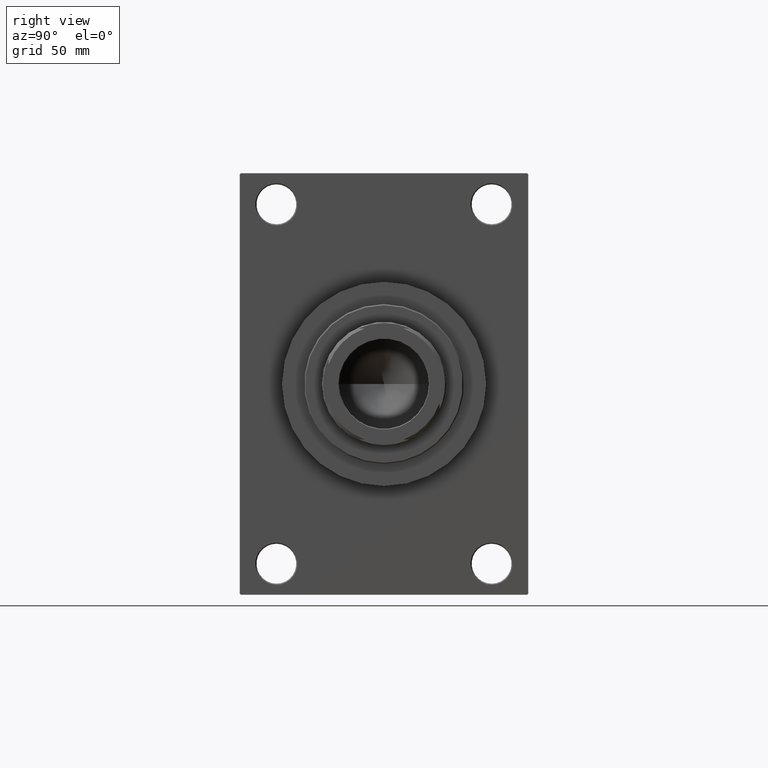
[diagram: clean part render]
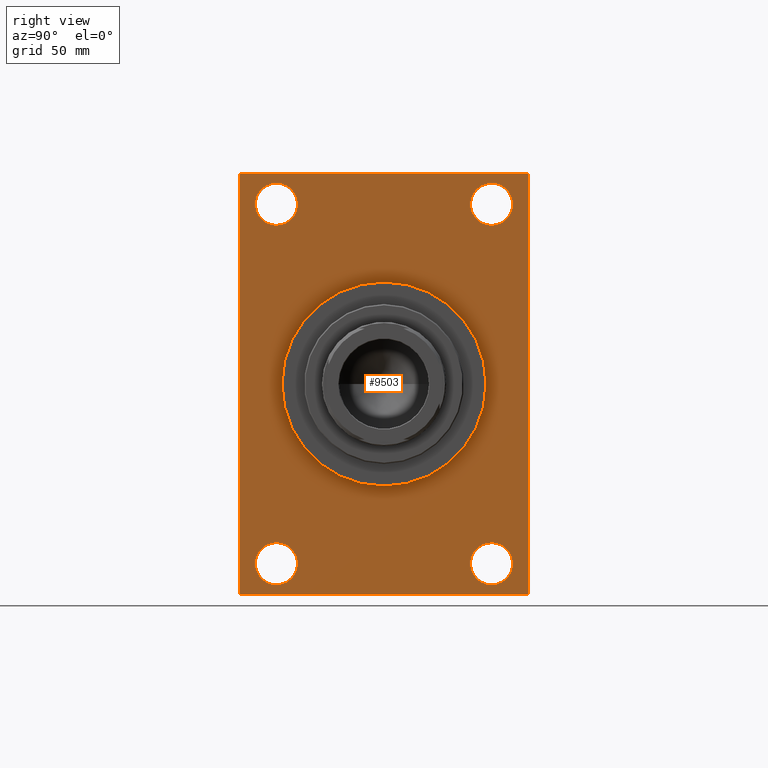
[diagram: same view with one face highlighted and labeled with its STEP entity id]
A machine part, right view. The second image highlights one B-rep face of the part: STEP entity #9503.
In plain terms, the highlighted planar face has unit normal (-1, 0, 0).
Its self-contained STEP definition (entity closure, byte-faithful):
#1101 = DIRECTION ( 'NONE',  ( -1.000000000000000000, 0.000000000000000000, -0.000000000000000000 ) ) ;
#1237 = CARTESIAN_POINT ( 'NONE',  ( 159.0000000000000000, -65.00000000000001421, -94.50000000000008527 ) ) ;
#1415 = EDGE_LOOP ( 'NONE', ( #4907, #4666, #29789, #25947, #44043, #23725, #31764, #9885 ) ) ;
#1436 = DIRECTION ( 'NONE',  ( -1.000000000000000000, 0.000000000000000000, -0.000000000000000000 ) ) ;
#1697 = LINE ( 'NONE', #20069, #4475 ) ;
#1803 = VERTEX_POINT ( 'NONE', #21171 ) ;
#2259 = CIRCLE ( 'NONE', #6932, 9.500000000000008882 ) ;
#2469 = ORIENTED_EDGE ( 'NONE', *, *, #18744, .T. ) ;
#4074 = CARTESIAN_POINT ( 'NONE',  ( 159.0000000000000000, 64.99999999999998579, -95.00000000000001421 ) ) ;
#4475 = VECTOR ( 'NONE', #8470, 1000.000000000000000 ) ;
#4664 = CIRCLE ( 'NONE', #33232, 9.500000000000008882 ) ;
#4666 = ORIENTED_EDGE ( 'NONE', *, *, #13728, .T. ) ;
#4907 = ORIENTED_EDGE ( 'NONE', *, *, #22412, .T. ) ;
#4955 = FACE_BOUND ( 'NONE', #46704, .T. ) ;
#5387 = DIRECTION ( 'NONE',  ( 1.000000000000000000, 0.000000000000000000, 0.000000000000000000 ) ) ;
#5436 = AXIS2_PLACEMENT_3D ( 'NONE', #21389, #17276, #43597 ) ;
#5768 = CARTESIAN_POINT ( 'NONE',  ( 159.0000000000000000, 48.50000000000000711, -90.50000000000002842 ) ) ;
#5809 = DIRECTION ( 'NONE',  ( 0.000000000000000000, 0.000000000000000000, 1.000000000000000000 ) ) ;
#6092 = VERTEX_POINT ( 'NONE', #18719 ) ;
#6487 = DIRECTION ( 'NONE',  ( -1.000000000000000000, 0.000000000000000000, -0.000000000000000000 ) ) ;
#6932 = AXIS2_PLACEMENT_3D ( 'NONE', #26514, #29663, #11052 ) ;
#7493 = VERTEX_POINT ( 'NONE', #8061 ) ;
#7687 = DIRECTION ( 'NONE',  ( -0.000000000000000000, 0.7071067811865574537, 0.7071067811865376918 ) ) ;
#8022 = VERTEX_POINT ( 'NONE', #41239 ) ;
#8061 = CARTESIAN_POINT ( 'NONE',  ( 159.0000000000000000, -48.49999999999999289, -71.50000000000001421 ) ) ;
#8470 = DIRECTION ( 'NONE',  ( 0.000000000000000000, 7.304098846218135653E-17, -1.000000000000000000 ) ) ;
#8588 = FACE_OUTER_BOUND ( 'NONE', #1415, .T. ) ;
#9503 = ADVANCED_FACE ( 'NONE', ( #22845, #26001, #45043, #19225, #4955, #8588 ), #33969, .F. ) ;
#9530 = CARTESIAN_POINT ( 'NONE',  ( 159.0000000000000000, 48.50000000000000711, 81.00000000000000000 ) ) ;
#9851 = EDGE_CURVE ( 'NONE', #33858, #17242, #14448, .T. ) ;
#9885 = ORIENTED_EDGE ( 'NONE', *, *, #43542, .T. ) ;
#9985 = LINE ( 'NONE', #24740, #13405 ) ;
#10129 = DIRECTION ( 'NONE',  ( 0.000000000000000000, 0.7071067811865474617, -0.7071067811865474617 ) ) ;
#10131 = EDGE_CURVE ( 'NONE', #8022, #40219, #1697, .T. ) ;
#10458 = CARTESIAN_POINT ( 'NONE',  ( 159.0000000000000000, -64.50000000000002842, 94.99999999999997158 ) ) ;
#11052 = DIRECTION ( 'NONE',  ( 0.000000000000000000, 0.000000000000000000, 1.000000000000000000 ) ) ;
#11102 = EDGE_CURVE ( 'NONE', #7493, #39065, #35347, .T. ) ;
#11124 = EDGE_LOOP ( 'NONE', ( #46546, #24216 ) ) ;
#12585 = LINE ( 'NONE', #12819, #35636 ) ;
#12617 = VECTOR ( 'NONE', #43074, 1000.000000000000114 ) ;
#12635 = CARTESIAN_POINT ( 'NONE',  ( 159.0000000000000000, 48.50000000000000711, 90.50000000000001421 ) ) ;
#12807 = DIRECTION ( 'NONE',  ( -1.000000000000000000, 0.000000000000000000, -0.000000000000000000 ) ) ;
#12819 = CARTESIAN_POINT ( 'NONE',  ( 159.0000000000000000, -65.00000000000001421, 94.49999999999997158 ) ) ;
#12914 = AXIS2_PLACEMENT_3D ( 'NONE', #29863, #1101, #44335 ) ;
#13398 = DIRECTION ( 'NONE',  ( 0.000000000000000000, 0.000000000000000000, -1.000000000000000000 ) ) ;
#13405 = VECTOR ( 'NONE', #24020, 1000.000000000000000 ) ;
#13669 = CIRCLE ( 'NONE', #19850, 9.500000000000008882 ) ;
#13728 = EDGE_CURVE ( 'NONE', #30883, #23838, #43214, .T. ) ;
#13881 = EDGE_CURVE ( 'NONE', #44274, #40219, #44626, .T. ) ;
#13913 = CIRCLE ( 'NONE', #5436, 46.00000000000000000 ) ;
#14064 = VERTEX_POINT ( 'NONE', #39070 ) ;
#14448 = CIRCLE ( 'NONE', #15996, 46.00000000000000000 ) ;
#14467 = AXIS2_PLACEMENT_3D ( 'NONE', #45889, #12807, #16436 ) ;
#14637 = VERTEX_POINT ( 'NONE', #38945 ) ;
#14944 = LINE ( 'NONE', #4074, #33822 ) ;
#15549 = ORIENTED_EDGE ( 'NONE', *, *, #36149, .F. ) ;
#15961 = DIRECTION ( 'NONE',  ( -1.000000000000000000, 0.000000000000000000, -0.000000000000000000 ) ) ;
#15996 = AXIS2_PLACEMENT_3D ( 'NONE', #31466, #5387, #27371 ) ;
#16436 = DIRECTION ( 'NONE',  ( 0.000000000000000000, 0.000000000000000000, 1.000000000000000000 ) ) ;
#17018 = EDGE_LOOP ( 'NONE', ( #2469, #18619 ) ) ;
#17242 = VERTEX_POINT ( 'NONE', #34185 ) ;
#17276 = DIRECTION ( 'NONE',  ( 1.000000000000000000, 0.000000000000000000, 0.000000000000000000 ) ) ;
#17437 = EDGE_CURVE ( 'NONE', #6092, #19377, #40076, .T. ) ;
#17675 = ORIENTED_EDGE ( 'NONE', *, *, #22892, .T. ) ;
#18619 = ORIENTED_EDGE ( 'NONE', *, *, #11102, .T. ) ;
#18719 = CARTESIAN_POINT ( 'NONE',  ( 159.0000000000000000, -48.50000000000000000, 71.50000000000000000 ) ) ;
#18744 = EDGE_CURVE ( 'NONE', #39065, #7493, #2259, .T. ) ;
#19225 = FACE_BOUND ( 'NONE', #35864, .T. ) ;
#19377 = VERTEX_POINT ( 'NONE', #31748 ) ;
#19457 = ORIENTED_EDGE ( 'NONE', *, *, #28857, .T. ) ;
#19592 = CARTESIAN_POINT ( 'NONE',  ( 159.0000000000000000, 48.50000000000000711, 81.00000000000000000 ) ) ;
#19850 = AXIS2_PLACEMENT_3D ( 'NONE', #9530, #24276, #39010 ) ;
#19905 = VERTEX_POINT ( 'NONE', #21406 ) ;
#20069 = CARTESIAN_POINT ( 'NONE',  ( 159.0000000000000000, 64.99999999999997158, 94.99999999999997158 ) ) ;
#20648 = ORIENTED_EDGE ( 'NONE', *, *, #17437, .T. ) ;
#20891 = ORIENTED_EDGE ( 'NONE', *, *, #45816, .T. ) ;
#21171 = CARTESIAN_POINT ( 'NONE',  ( 159.0000000000000000, 48.50000000000000711, -71.50000000000001421 ) ) ;
#21389 = CARTESIAN_POINT ( 'NONE',  ( 159.0000000000000000, 0.000000000000000000, 0.000000000000000000 ) ) ;
#21406 = CARTESIAN_POINT ( 'NONE',  ( 159.0000000000000000, 48.50000000000000711, 71.50000000000000000 ) ) ;
#21918 = CARTESIAN_POINT ( 'NONE',  ( 159.0000000000000000, 0.000000000000000000, 46.00000000000000000 ) ) ;
#22412 = EDGE_CURVE ( 'NONE', #14064, #30883, #39505, .T. ) ;
#22845 = FACE_BOUND ( 'NONE', #36574, .T. ) ;
#22892 = EDGE_CURVE ( 'NONE', #19377, #6092, #45212, .T. ) ;
#23085 = CIRCLE ( 'NONE', #29268, 9.500000000000008882 ) ;
#23459 = DIRECTION ( 'NONE',  ( -1.000000000000000000, 0.000000000000000000, -0.000000000000000000 ) ) ;
#23725 = ORIENTED_EDGE ( 'NONE', *, *, #47613, .T. ) ;
#23838 = VERTEX_POINT ( 'NONE', #32255 ) ;
#24020 = DIRECTION ( 'NONE',  ( 0.000000000000000000, -1.000000000000000000, 0.000000000000000000 ) ) ;
#24216 = ORIENTED_EDGE ( 'NONE', *, *, #34542, .T. ) ;
#24276 = DIRECTION ( 'NONE',  ( -1.000000000000000000, 0.000000000000000000, -0.000000000000000000 ) ) ;
#24740 = CARTESIAN_POINT ( 'NONE',  ( 159.0000000000000000, 64.99999999999997158, 94.99999999999997158 ) ) ;
#25947 = ORIENTED_EDGE ( 'NONE', *, *, #13881, .T. ) ;
#26001 = FACE_BOUND ( 'NONE', #17018, .T. ) ;
#26232 = VERTEX_POINT ( 'NONE', #12635 ) ;
#26514 = CARTESIAN_POINT ( 'NONE',  ( 159.0000000000000000, -48.49999999999999289, -81.00000000000001421 ) ) ;
#26973 = VECTOR ( 'NONE', #7687, 999.9999999999998863 ) ;
#26998 = CARTESIAN_POINT ( 'NONE',  ( 159.0000000000000000, 64.99999999999998579, -94.49999999999997158 ) ) ;
#27340 = DIRECTION ( 'NONE',  ( -0.000000000000000000, -0.7071067811865378028, -0.7071067811865573427 ) ) ;
#27371 = DIRECTION ( 'NONE',  ( 0.000000000000000000, 0.000000000000000000, -1.000000000000000000 ) ) ;
#28356 = LINE ( 'NONE', #31743, #12617 ) ;
#28488 = AXIS2_PLACEMENT_3D ( 'NONE', #38168, #1436, #45387 ) ;
#28741 = CARTESIAN_POINT ( 'NONE',  ( 159.0000000000000000, -64.50000000000007105, -95.00000000000002842 ) ) ;
#28813 = DIRECTION ( 'NONE',  ( 0.000000000000000000, 0.000000000000000000, 1.000000000000000000 ) ) ;
#28857 = EDGE_CURVE ( 'NONE', #26232, #19905, #13669, .T. ) ;
#29193 = DIRECTION ( 'NONE',  ( 0.000000000000000000, 0.000000000000000000, 1.000000000000000000 ) ) ;
#29268 = AXIS2_PLACEMENT_3D ( 'NONE', #36761, #33141, #28813 ) ;
#29663 = DIRECTION ( 'NONE',  ( -1.000000000000000000, 0.000000000000000000, -0.000000000000000000 ) ) ;
#29789 = ORIENTED_EDGE ( 'NONE', *, *, #30271, .F. ) ;
#29863 = CARTESIAN_POINT ( 'NONE',  ( 159.0000000000000000, 0.000000000000000000, 0.000000000000000000 ) ) ;
#30271 = EDGE_CURVE ( 'NONE', #44274, #23838, #14944, .T. ) ;
#30883 = VERTEX_POINT ( 'NONE', #1237 ) ;
#31374 = VECTOR ( 'NONE', #13398, 1000.000000000000000 ) ;
#31466 = CARTESIAN_POINT ( 'NONE',  ( 159.0000000000000000, 0.000000000000000000, 0.000000000000000000 ) ) ;
#31743 = CARTESIAN_POINT ( 'NONE',  ( 159.0000000000000000, 64.49999999999997158, 94.99999999999997158 ) ) ;
#31748 = CARTESIAN_POINT ( 'NONE',  ( 159.0000000000000000, -48.50000000000000000, 90.50000000000001421 ) ) ;
#31764 = ORIENTED_EDGE ( 'NONE', *, *, #47619, .T. ) ;
#31775 = CARTESIAN_POINT ( 'NONE',  ( 159.0000000000000000, -65.00000000000001421, 94.99999999999997158 ) ) ;
#32255 = CARTESIAN_POINT ( 'NONE',  ( 159.0000000000000000, -64.50000000000007105, -95.00000000000002842 ) ) ;
#33141 = DIRECTION ( 'NONE',  ( -1.000000000000000000, 0.000000000000000000, -0.000000000000000000 ) ) ;
#33232 = AXIS2_PLACEMENT_3D ( 'NONE', #43666, #6487, #29193 ) ;
#33552 = DIRECTION ( 'NONE',  ( 0.000000000000000000, -1.000000000000000000, -1.067522139062650425E-16 ) ) ;
#33822 = VECTOR ( 'NONE', #33552, 1000.000000000000000 ) ;
#33858 = VERTEX_POINT ( 'NONE', #21918 ) ;
#33969 = PLANE ( 'NONE',  #12914 ) ;
#34185 = CARTESIAN_POINT ( 'NONE',  ( 159.0000000000000000, 5.633375276077824704E-15, -46.00000000000000000 ) ) ;
#34330 = DIRECTION ( 'NONE',  ( 0.000000000000000000, 0.000000000000000000, 1.000000000000000000 ) ) ;
#34542 = EDGE_CURVE ( 'NONE', #1803, #40030, #23085, .T. ) ;
#35139 = CARTESIAN_POINT ( 'NONE',  ( 159.0000000000000000, -48.49999999999999289, -90.50000000000002842 ) ) ;
#35347 = CIRCLE ( 'NONE', #14467, 9.500000000000008882 ) ;
#35636 = VECTOR ( 'NONE', #27340, 1000.000000000000000 ) ;
#35864 = EDGE_LOOP ( 'NONE', ( #20891, #19457 ) ) ;
#36149 = EDGE_CURVE ( 'NONE', #17242, #33858, #13913, .T. ) ;
#36574 = EDGE_LOOP ( 'NONE', ( #20648, #17675 ) ) ;
#36666 = VERTEX_POINT ( 'NONE', #10458 ) ;
#36761 = CARTESIAN_POINT ( 'NONE',  ( 159.0000000000000000, 48.50000000000000711, -81.00000000000001421 ) ) ;
#37053 = ORIENTED_EDGE ( 'NONE', *, *, #9851, .F. ) ;
#38054 = AXIS2_PLACEMENT_3D ( 'NONE', #19592, #15961, #34330 ) ;
#38168 = CARTESIAN_POINT ( 'NONE',  ( 159.0000000000000000, -48.50000000000000000, 81.00000000000000000 ) ) ;
#38528 = VECTOR ( 'NONE', #10129, 1000.000000000000114 ) ;
#38908 = CARTESIAN_POINT ( 'NONE',  ( 159.0000000000000000, -48.50000000000000000, 81.00000000000000000 ) ) ;
#38945 = CARTESIAN_POINT ( 'NONE',  ( 159.0000000000000000, 64.49999999999997158, 94.99999999999997158 ) ) ;
#39010 = DIRECTION ( 'NONE',  ( 0.000000000000000000, 0.000000000000000000, 1.000000000000000000 ) ) ;
#39065 = VERTEX_POINT ( 'NONE', #35139 ) ;
#39070 = CARTESIAN_POINT ( 'NONE',  ( 159.0000000000000000, -65.00000000000001421, 94.49999999999997158 ) ) ;
#39505 = LINE ( 'NONE', #31775, #31374 ) ;
#40030 = VERTEX_POINT ( 'NONE', #5768 ) ;
#40076 = CIRCLE ( 'NONE', #28488, 9.500000000000008882 ) ;
#40145 = EDGE_CURVE ( 'NONE', #40030, #1803, #4664, .T. ) ;
#40219 = VERTEX_POINT ( 'NONE', #26998 ) ;
#41239 = CARTESIAN_POINT ( 'NONE',  ( 159.0000000000000000, 64.99999999999997158, 94.49999999999997158 ) ) ;
#41372 = AXIS2_PLACEMENT_3D ( 'NONE', #38908, #23459, #5809 ) ;
#43074 = DIRECTION ( 'NONE',  ( 0.000000000000000000, -0.7071067811865474617, 0.7071067811865474617 ) ) ;
#43214 = LINE ( 'NONE', #28741, #38528 ) ;
#43542 = EDGE_CURVE ( 'NONE', #36666, #14064, #12585, .T. ) ;
#43597 = DIRECTION ( 'NONE',  ( 0.000000000000000000, 0.000000000000000000, -1.000000000000000000 ) ) ;
#43605 = CARTESIAN_POINT ( 'NONE',  ( 159.0000000000000000, 64.49999999999992895, -95.00000000000001421 ) ) ;
#43666 = CARTESIAN_POINT ( 'NONE',  ( 159.0000000000000000, 48.50000000000000711, -81.00000000000001421 ) ) ;
#44043 = ORIENTED_EDGE ( 'NONE', *, *, #10131, .F. ) ;
#44151 = CARTESIAN_POINT ( 'NONE',  ( 159.0000000000000000, 64.99999999999998579, -94.49999999999997158 ) ) ;
#44274 = VERTEX_POINT ( 'NONE', #43605 ) ;
#44335 = DIRECTION ( 'NONE',  ( -0.000000000000000000, 0.000000000000000000, 1.000000000000000000 ) ) ;
#44626 = LINE ( 'NONE', #44151, #26973 ) ;
#45043 = FACE_BOUND ( 'NONE', #11124, .T. ) ;
#45212 = CIRCLE ( 'NONE', #41372, 9.500000000000008882 ) ;
#45387 = DIRECTION ( 'NONE',  ( 0.000000000000000000, 0.000000000000000000, 1.000000000000000000 ) ) ;
#45816 = EDGE_CURVE ( 'NONE', #19905, #26232, #46506, .T. ) ;
#45889 = CARTESIAN_POINT ( 'NONE',  ( 159.0000000000000000, -48.49999999999999289, -81.00000000000001421 ) ) ;
#46506 = CIRCLE ( 'NONE', #38054, 9.500000000000008882 ) ;
#46546 = ORIENTED_EDGE ( 'NONE', *, *, #40145, .T. ) ;
#46704 = EDGE_LOOP ( 'NONE', ( #37053, #15549 ) ) ;
#47613 = EDGE_CURVE ( 'NONE', #8022, #14637, #28356, .T. ) ;
#47619 = EDGE_CURVE ( 'NONE', #14637, #36666, #9985, .T. ) ;